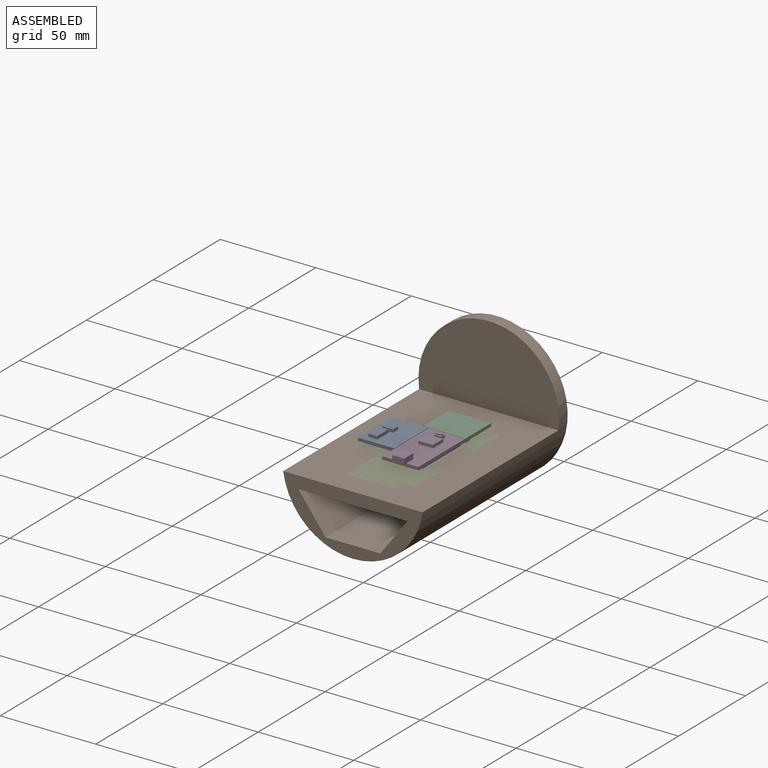
[diagram: assembled view]
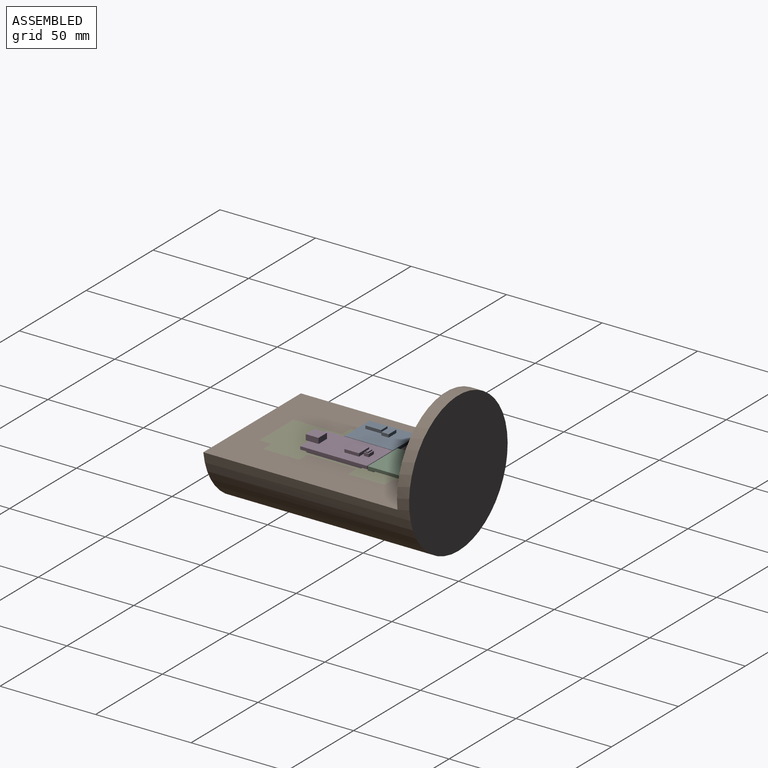
[diagram: assembled view, second angle]
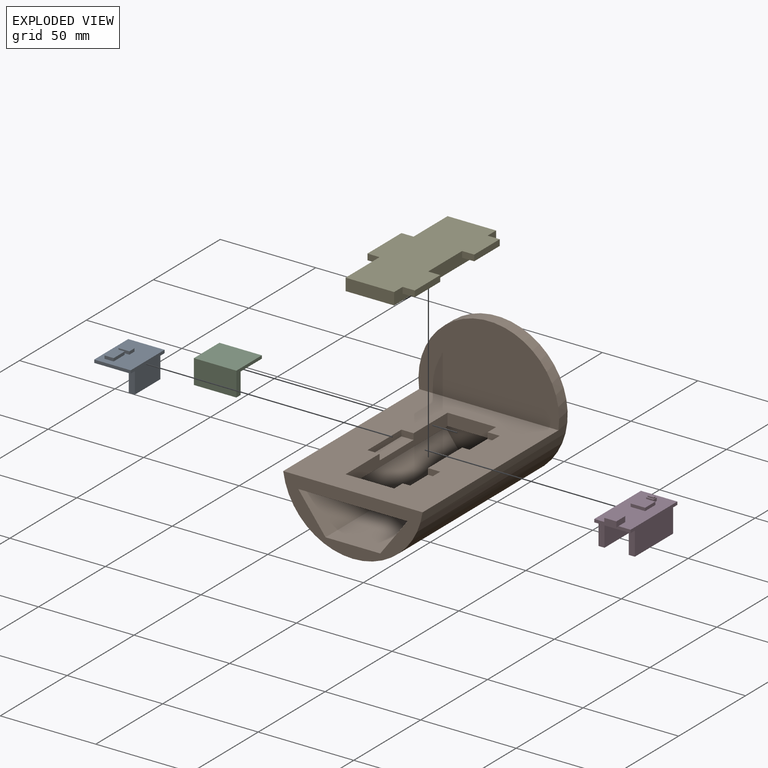
[diagram: exploded view]
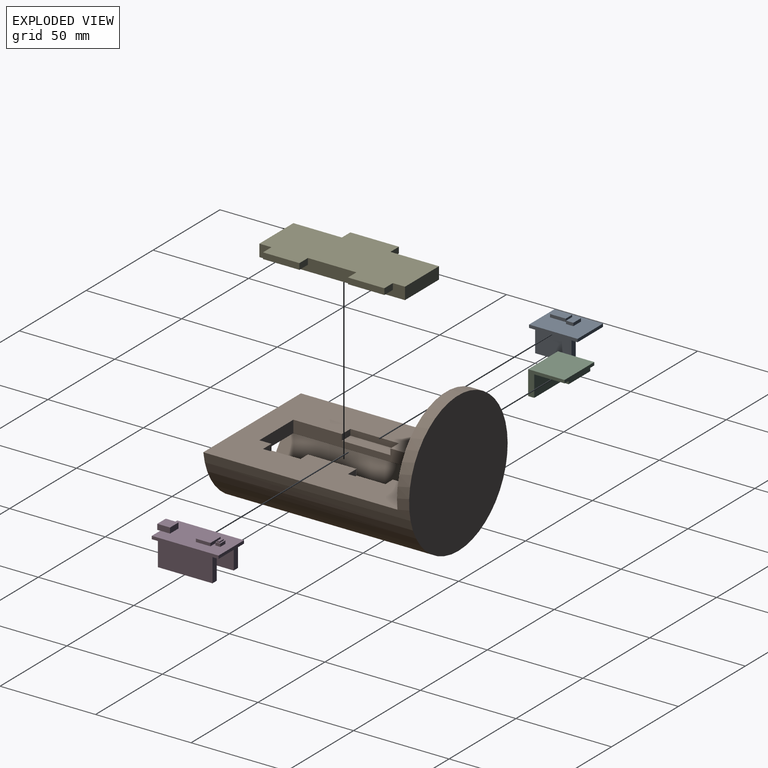
[diagram: exploded view, second angle]
ASSEMBLY  parts=5 mates=3
PART A: 20 faces, bbox 25.4x19.1x14.3 mm
  f0: plane 25.4x12.7mm, normal (0,-1,0), area 252mm2, adj f1,f3,f4,f5,f16,f18,f19
  f1: plane 19.05x1.59mm, normal (1,0,0), area 30.2mm2, adj f0,f2,f4,f5
  f2: plane 25.4x1.59mm, normal (0,1,0), area 40.3mm2, adj f1,f3,f4,f5
  f3: plane 19.05x1.59mm, normal (-1,0,0), area 30.2mm2, adj f0,f2,f4,f5
  f4: plane 25.4x19.05mm, normal (0,0,1), area 422.8mm2, adj f0,f1,f2,f3,f7,f8,f9,f10
  f5: plane 25.4x19.05mm, normal (0,0,-1), area 423.4mm2, adj f0,f1,f2,f3,f16,f17,f18
  f6: plane 8.26x4.76mm, normal (0,0,1), area 39.3mm2, adj f7,f8,f9,f10
  f7: plane 8.26x1.59mm, normal (0,1,0), area 13.1mm2, adj f4,f6,f8,f10
  f8: plane 4.76x1.59mm, normal (1,0,0), area 7.6mm2, adj f4,f6,f7,f9
  f9: plane 8.26x1.59mm, normal (0,-1,0), area 13.1mm2, adj f4,f6,f8,f10
  f10: plane 4.76x1.59mm, normal (-1,0,0), area 7.6mm2, adj f4,f6,f7,f9
  f11: plane 5.72x3.81mm, normal (0,0,1), area 21.8mm2, adj f12,f13,f14,f15
  f12: plane 5.72x1.59mm, normal (1,0,0), area 9.1mm2, adj f4,f11,f13,f15
  f13: plane 3.81x1.59mm, normal (0,-1,0), area 6mm2, adj f4,f11,f12,f14
  f14: plane 5.72x1.59mm, normal (-1,0,0), area 9.1mm2, adj f4,f11,f13,f15
  f15: plane 3.81x1.59mm, normal (0,1,0), area 6mm2, adj f4,f11,f12,f14
  f16: plane 11.11x3.18mm, normal (1,0,0), area 35.3mm2, adj f0,f5,f17,f19
  f17: plane 19.05x11.11mm, normal (0,1,0), area 211.7mm2, adj f5,f16,f18,f19
  f18: plane 11.11x3.18mm, normal (-1,0,0), area 35.3mm2, adj f0,f5,f17,f19
  f19: plane 19.05x3.18mm, normal (0,0,-1), area 60.5mm2, adj f0,f16,f17,f18
PART B: 27 faces, bbox 108x73.7x73.7 mm
  f0: plane 101.6x72.96mm, normal (0,0,1), area 5073.6mm2, adj f1,f7,f8,f10,f12,f13,f14,f15
  f1: plane 76.2x6.35mm, normal (0,-1,0), area 362.9mm2, adj f0,f2,f12,f14,f16,f17,f18,f19
  f2: plane 101.6x47.46mm, normal (0,0,-1), area 2886.1mm2, adj f1,f3,f6,f8,f11,f12,f13,f14
  f3: plane 101.6x19.05mm, normal (0,-0.8,0.6), area 2417.1mm2, adj f2,f4,f8,f11
  f4: plane 101.6x28.65mm, normal (0,0,1), area 2910.7mm2, adj f3,f5,f8,f11
  f5: plane 101.6x19.05mm, normal (0,0.8,0.6), area 2416.6mm2, adj f4,f6,f8,f11
  f6: plane 101.6x9.69mm, normal (0,0,-1), area 984.7mm2, adj f2,f5,f8,f11
  f7: cylinder r=36.83mm len=107.95mm, axis (-1,0,0), area 12189.5mm2, adj f0,f8,f9,f10
  f8: plane 72.96x31.75mm, normal (1,0,0), area 940.5mm2, adj f0,f2,f3,f4,f5,f6,f7
  f9: plane 73.66x73.66mm, normal (-1,0,0), area 4261.4mm2, adj f7
  f10: plane 73.66x41.91mm, normal (1,0,0), area 2503.7mm2, adj f0,f7
  f11: plane 57.15x19.05mm, normal (1,0,0), area 817.2mm2, adj f2,f3,f4,f5,f6
  f12: plane 25.4x6.35mm, normal (1,0,0), area 161.3mm2, adj f0,f1,f2,f13
  f13: plane 76.2x6.35mm, normal (0,1,0), area 403.2mm2, adj f0,f2,f12,f14,f23,f25,f26
  f14: plane 25.4x6.35mm, normal (-1,0,0), area 161.3mm2, adj f0,f1,f2,f13
  f15: plane 19.05x3.18mm, normal (0,-1,0), area 60.5mm2, adj f0,f16,f17,f18
  f16: plane 6.35x3.18mm, normal (1,0,0), area 20.2mm2, adj f0,f1,f15,f18
  f17: plane 6.35x3.18mm, normal (-1,0,0), area 20.2mm2, adj f0,f1,f15,f18
  f18: plane 19.05x6.35mm, normal (0,0,1), area 121mm2, adj f1,f15,f16,f17
  f19: plane 6.35x3.18mm, normal (1,0,0), area 20.2mm2, adj f0,f1,f21,f22
  f20: plane 6.35x3.18mm, normal (-1,0,0), area 20.2mm2, adj f0,f1,f21,f22
  f21: plane 19.05x3.18mm, normal (0,-1,0), area 60.5mm2, adj f0,f19,f20,f22
  f22: plane 19.05x6.35mm, normal (0,0,1), area 121mm2, adj f1,f19,f20,f21
  f23: plane 6.35x3.18mm, normal (1,0,0), area 20.2mm2, adj f0,f13,f24,f26
  f24: plane 25.4x3.18mm, normal (0,1,0), area 80.6mm2, adj f0,f23,f25,f26
  f25: plane 6.35x3.18mm, normal (-1,0,0), area 20.2mm2, adj f0,f13,f24,f26
  f26: plane 25.4x6.35mm, normal (0,0,1), area 161.3mm2, adj f13,f23,f24,f25
PART C: 12 faces, bbox 19.1x22.2x12.7 mm
  f0: plane 19.05x12.7mm, normal (0,-1,0), area 65.5mm2, adj f1,f3,f4,f5,f6,f7
  f1: plane 22.23x3.18mm, normal (1,0,0), area 60.9mm2, adj f0,f2,f3,f4,f8,f10,f11
  f2: plane 19.05x12.7mm, normal (0,1,0), area 65.5mm2, adj f1,f3,f4,f5,f6,f7
  f3: plane 22.23x15.88mm, normal (0,0,-1), area 148.1mm2, adj f0,f1,f2,f5,f8,f9,f10
  f4: plane 22.23x19.05mm, normal (0,0,1), area 423.4mm2, adj f0,f1,f2,f6
  f5: plane 22.23x11.11mm, normal (1,0,0), area 247mm2, adj f0,f2,f3,f7
  f6: plane 22.23x12.7mm, normal (-1,0,0), area 282.3mm2, adj f0,f2,f4,f7
  f7: plane 22.23x3.18mm, normal (0,0,-1), area 70.6mm2, adj f0,f2,f5,f6
  f8: plane 12.7x1.59mm, normal (0,1,0), area 20.2mm2, adj f1,f3,f9,f11
  f9: plane 16.12x1.59mm, normal (-1,0,0), area 25.6mm2, adj f3,f8,f10,f11
  f10: plane 12.7x1.59mm, normal (0,-1,0), area 20.2mm2, adj f1,f3,f9,f11
  f11: plane 16.12x12.7mm, normal (0,0,-1), area 204.7mm2, adj f1,f8,f9,f10
PART D: 35 faces, bbox 19.1x36.5x16.8 mm
  f0: plane 34.93x19.05mm, normal (0,0,-1), area 483.9mm2, adj f3,f4,f5,f6,f12,f13,f14,f16
  f1: plane 6.67x2.86mm, normal (-1,0,0), area 19.1mm2, adj f7,f8,f9,f10,f11
  f2: plane 6.67x2.86mm, normal (1,0,0), area 19.1mm2, adj f7,f8,f9,f10,f11
  f3: plane 19.05x1.59mm, normal (0,-1,0), area 30.2mm2, adj f0,f4,f6,f7
  f4: plane 34.93x13.97mm, normal (1,0,0), area 409.3mm2, adj f0,f3,f5,f7,f12,f13,f15
  f5: plane 19.05x1.59mm, normal (0,1,0), area 30.2mm2, adj f0,f4,f6,f7,f11
  f6: plane 34.93x13.97mm, normal (-1,0,0), area 409.3mm2, adj f0,f3,f5,f7,f17,f18,f19
  f7: plane 34.93x19.05mm, normal (0,0,1), area 565.3mm2, adj f1,f2,f3,f4,f5,f6,f8,f20
  f8: plane 6.35x2.86mm, normal (0,-1,0), area 18.1mm2, adj f1,f2,f7,f9
  f9: plane 6.67x6.35mm, normal (0,0,1), area 42.3mm2, adj f1,f2,f8,f10
  f10: plane 6.35x2.86mm, normal (0,1,0), area 18.1mm2, adj f1,f2,f9,f11
  f11: plane 6.35x1.59mm, normal (0,0,-1), area 10.1mm2, adj f1,f2,f5,f10
  f12: plane 12.38x3.18mm, normal (0,-1,0), area 39.3mm2, adj f0,f4,f14,f15
  f13: plane 12.38x3.18mm, normal (0,1,0), area 39.3mm2, adj f0,f4,f14,f15
  f14: plane 28.58x12.38mm, normal (-1,0,0), area 353.8mm2, adj f0,f12,f13,f15
  f15: plane 28.58x3.18mm, normal (0,0,-1), area 90.7mm2, adj f4,f12,f13,f14
  f16: plane 28.58x12.38mm, normal (1,0,0), area 353.8mm2, adj f0,f17,f18,f19
  f17: plane 12.38x3.18mm, normal (0,1,0), area 39.3mm2, adj f0,f6,f16,f19
  f18: plane 12.38x3.18mm, normal (0,-1,0), area 39.3mm2, adj f0,f6,f16,f19
  f19: plane 28.58x3.18mm, normal (0,0,-1), area 90.7mm2, adj f6,f16,f17,f18
  f20: plane 3.81x1.59mm, normal (0,-1,0), area 6mm2, adj f7,f21,f23,f24
  f21: plane 2.54x1.59mm, normal (1,0,0), area 4mm2, adj f7,f20,f22,f24
  f22: plane 3.81x1.59mm, normal (0,1,0), area 6mm2, adj f7,f21,f23,f24
  f23: plane 2.54x1.59mm, normal (-1,0,0), area 4mm2, adj f7,f20,f22,f24
  f24: plane 3.81x2.54mm, normal (0,0,1), area 5.6mm2, adj f20,f21,f22,f23,f26,f27,f28,f29
  f25: plane 3.18x1.27mm, normal (0,0,1), area 4mm2, adj f26,f27,f28,f29
  f26: plane 1.27x0.64mm, normal (-1,0,0), area 0.8mm2, adj f24,f25,f27,f29
  f27: plane 3.18x0.64mm, normal (0,1,0), area 2mm2, adj f24,f25,f26,f28
  f28: plane 1.27x0.64mm, normal (1,0,0), area 0.8mm2, adj f24,f25,f27,f29
  f29: plane 3.18x0.64mm, normal (0,-1,0), area 2mm2, adj f24,f25,f26,f28
  f30: plane 7.62x7.62mm, normal (0,0,1), area 58.1mm2, adj f31,f32,f33,f34
  f31: plane 7.62x1.59mm, normal (-1,0,0), area 12.1mm2, adj f7,f30,f32,f34
  f32: plane 7.62x1.59mm, normal (0,1,0), area 12.1mm2, adj f7,f30,f31,f33
  f33: plane 7.62x1.59mm, normal (1,0,0), area 12.1mm2, adj f7,f30,f32,f34
  f34: plane 7.62x1.59mm, normal (0,-1,0), area 12.1mm2, adj f7,f30,f31,f33
PART E: 18 faces, bbox 76.2x38.1x6.4 mm
  f0: plane 76.2x6.35mm, normal (0,-1,0), area 403.2mm2, adj f1,f3,f4,f5,f6,f7,f8
  f1: plane 76.2x25.4mm, normal (0,0,-1), area 1935.5mm2, adj f0,f2,f4,f5
  f2: plane 76.2x6.35mm, normal (0,1,0), area 362.9mm2, adj f1,f3,f4,f5,f10,f11,f12,f14
  f3: plane 76.2x38.1mm, normal (0,0,1), area 2338.7mm2, adj f0,f2,f4,f5,f6,f8,f9,f10
  f4: plane 25.4x6.35mm, normal (1,0,0), area 161.3mm2, adj f0,f1,f2,f3
  f5: plane 25.4x6.35mm, normal (-1,0,0), area 161.3mm2, adj f0,f1,f2,f3
  f6: plane 6.35x3.18mm, normal (-1,0,0), area 20.2mm2, adj f0,f3,f7,f9
  f7: plane 25.4x6.35mm, normal (0,0,-1), area 161.3mm2, adj f0,f6,f8,f9
  f8: plane 6.35x3.18mm, normal (1,0,0), area 20.2mm2, adj f0,f3,f7,f9
  f9: plane 25.4x3.18mm, normal (0,-1,0), area 80.6mm2, adj f3,f6,f7,f8
  f10: plane 6.35x3.18mm, normal (-1,0,0), area 20.2mm2, adj f2,f3,f12,f13
  f11: plane 6.35x3.18mm, normal (1,0,0), area 20.2mm2, adj f2,f3,f12,f13
  f12: plane 19.05x6.35mm, normal (0,0,-1), area 121mm2, adj f2,f10,f11,f13
  f13: plane 19.05x3.18mm, normal (0,1,0), area 60.5mm2, adj f3,f10,f11,f12
  f14: plane 6.35x3.18mm, normal (1,0,0), area 20.2mm2, adj f2,f3,f15,f17
  f15: plane 19.05x6.35mm, normal (0,0,-1), area 121mm2, adj f2,f14,f16,f17
  f16: plane 6.35x3.18mm, normal (-1,0,0), area 20.2mm2, adj f2,f3,f15,f17
  f17: plane 19.05x3.18mm, normal (0,1,0), area 60.5mm2, adj f3,f14,f15,f16
PLACE A rot(axis=(0,0,1),90deg) t=(-17.56,-52.7,0.42)mm
PLACE B rot(axis=(0,0,-1),90deg) t=(0.13,-6.4,5.04)mm
PLACE C rot(axis=(0,0,1),90deg) t=(0.21,-30.18,2)mm
PLACE D rot(axis=(0,0,1),180deg) t=(1.8,-57.47,0.42)mm
PLACE E rot(axis=(0,0,-1),90deg) t=(0.13,-19.1,-3.22)mm
MATE pin_slot B.f22 <-> E.f15  axis (0,0,1) through (16,-34.98,-3.22)mm
MATE pin_slot E.f12 <-> B.f18  axis (0,0,-1) through (16,-79.43,-3.22)mm
MATE pin_slot B.f26 <-> E.f7  axis (0,0,1) through (-15.75,-57.2,-3.22)mm
